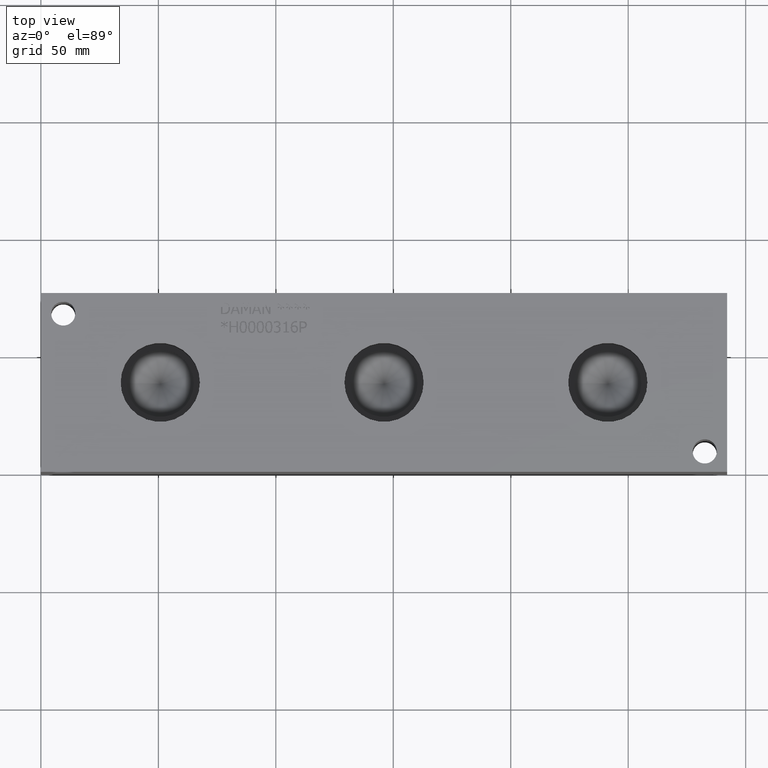
[diagram: clean part render]
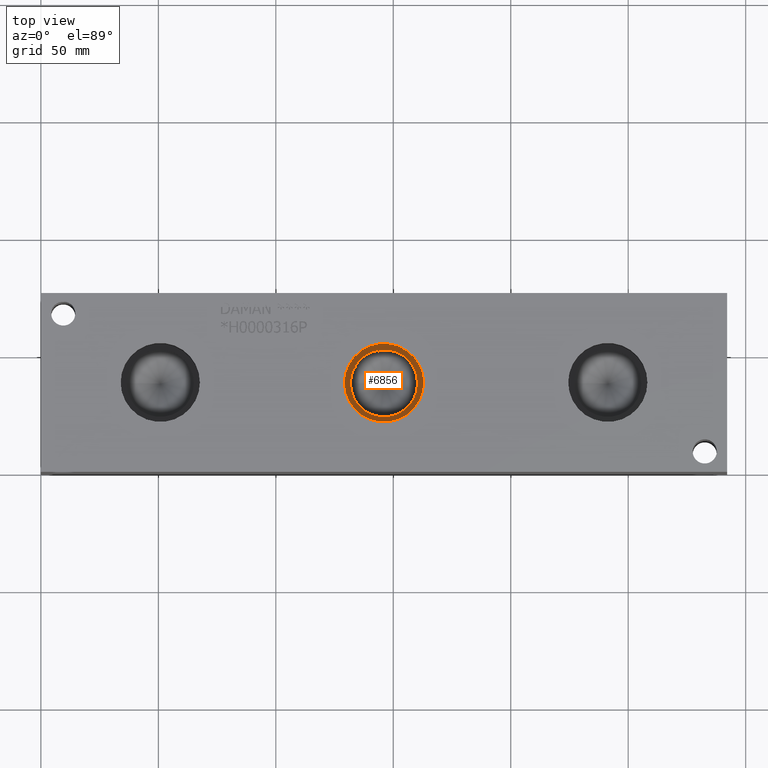
[diagram: same view with one face highlighted and labeled with its STEP entity id]
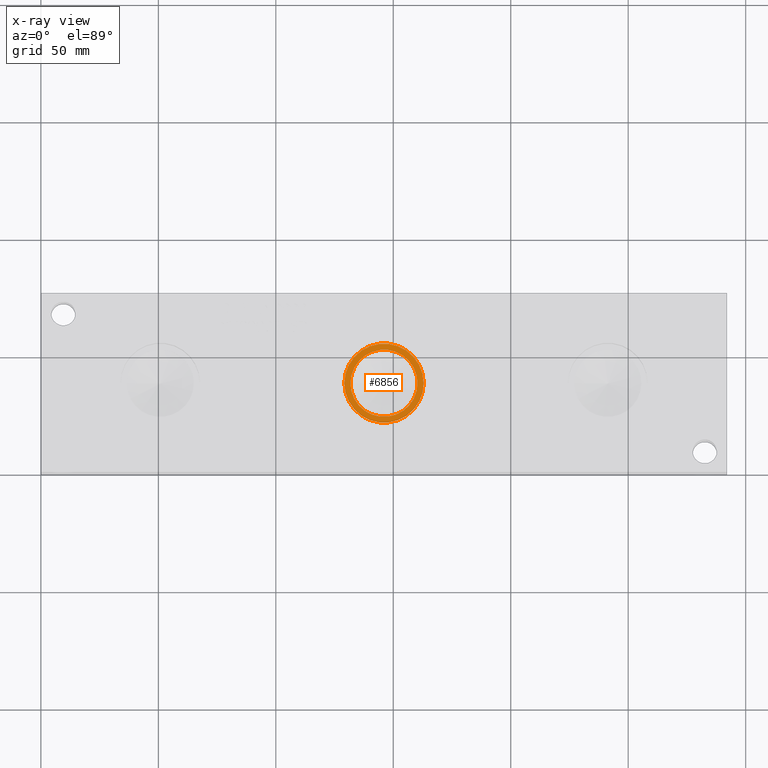
[diagram: x-ray of the same camera — body ghosted, the highlighted face saturated]
A machine part, top view. The second image highlights one B-rep face of the part: STEP entity #6856.
The next image is the same camera in x-ray: the body ghosted, the highlighted face saturated — about 0% of this face is hidden behind the body in this view.
In plain terms, the highlighted planar face has unit normal (0, 0, 1).
Its self-contained STEP definition (entity closure, byte-faithful):
#77=CIRCLE('',#7154,16.8529);
#78=CIRCLE('',#7155,16.8529);
#79=CIRCLE('',#7156,14.2875);
#436=FACE_BOUND('',#1156,.T.);
#774=FACE_OUTER_BOUND('',#1155,.T.);
#1155=EDGE_LOOP('',(#5906,#5907));
#1156=EDGE_LOOP('',(#5908));
#3158=VERTEX_POINT('',#11654);
#3159=VERTEX_POINT('',#11655);
#3160=VERTEX_POINT('',#11658);
#4088=EDGE_CURVE('',#3158,#3159,#77,.T.);
#4089=EDGE_CURVE('',#3159,#3158,#78,.T.);
#4090=EDGE_CURVE('',#3160,#3160,#79,.T.);
#5906=ORIENTED_EDGE('',*,*,#4088,.T.);
#5907=ORIENTED_EDGE('',*,*,#4089,.T.);
#5908=ORIENTED_EDGE('',*,*,#4090,.F.);
#6216=PLANE('',#7153);
#6856=ADVANCED_FACE('',(#774,#436),#6216,.T.);
#7153=AXIS2_PLACEMENT_3D('',#11653,#8380,#8381);
#7154=AXIS2_PLACEMENT_3D('',#11656,#8382,#8383);
#7155=AXIS2_PLACEMENT_3D('',#11657,#8384,#8385);
#7156=AXIS2_PLACEMENT_3D('',#11659,#8386,#8387);
#8380=DIRECTION('center_axis',(0.,0.,1.));
#8381=DIRECTION('ref_axis',(1.,0.,0.));
#8382=DIRECTION('center_axis',(0.,0.,1.));
#8383=DIRECTION('ref_axis',(1.,0.,0.));
#8384=DIRECTION('center_axis',(0.,0.,1.));
#8385=DIRECTION('ref_axis',(1.,0.,0.));
#8386=DIRECTION('center_axis',(0.,0.,1.));
#8387=DIRECTION('ref_axis',(1.,0.,0.));
#11653=CARTESIAN_POINT('Origin',(146.05,38.1,57.2008));
#11654=CARTESIAN_POINT('',(162.9029,38.1,57.2008));
#11655=CARTESIAN_POINT('',(129.1971,38.1,57.2008));
#11656=CARTESIAN_POINT('Origin',(146.05,38.1,57.2008));
#11657=CARTESIAN_POINT('Origin',(146.05,38.1,57.2008));
#11658=CARTESIAN_POINT('',(131.7625,38.1,57.2008));
#11659=CARTESIAN_POINT('Origin',(146.05,38.1,57.2008));